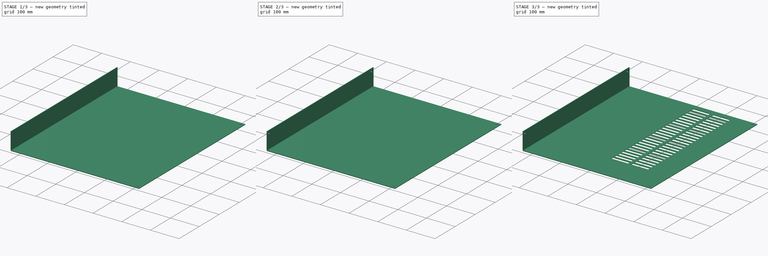
[diagram: build sequence overview — one tinted view per stage of 3, left to right]
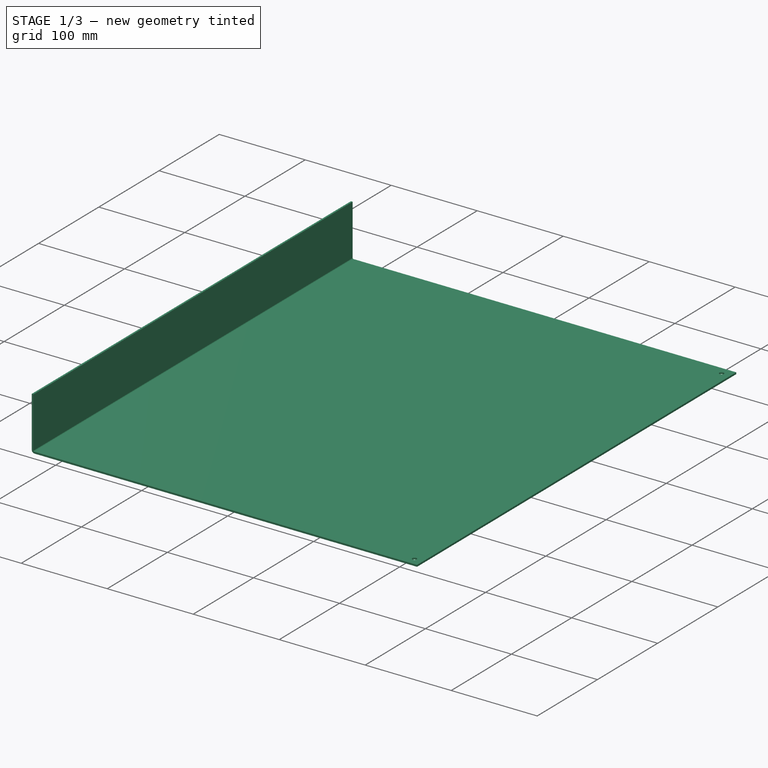
[diagram: stage 1 of 3 — iso view after this stage's code; geometry added in this stage tinted green]
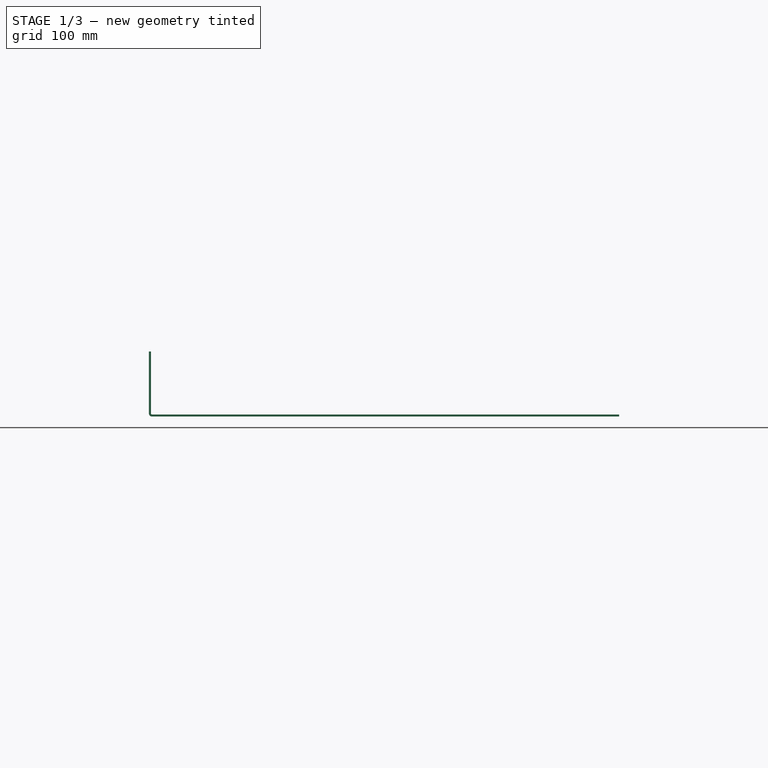
[diagram: stage 1 of 3 — front view after this stage's code; geometry added in this stage tinted green]
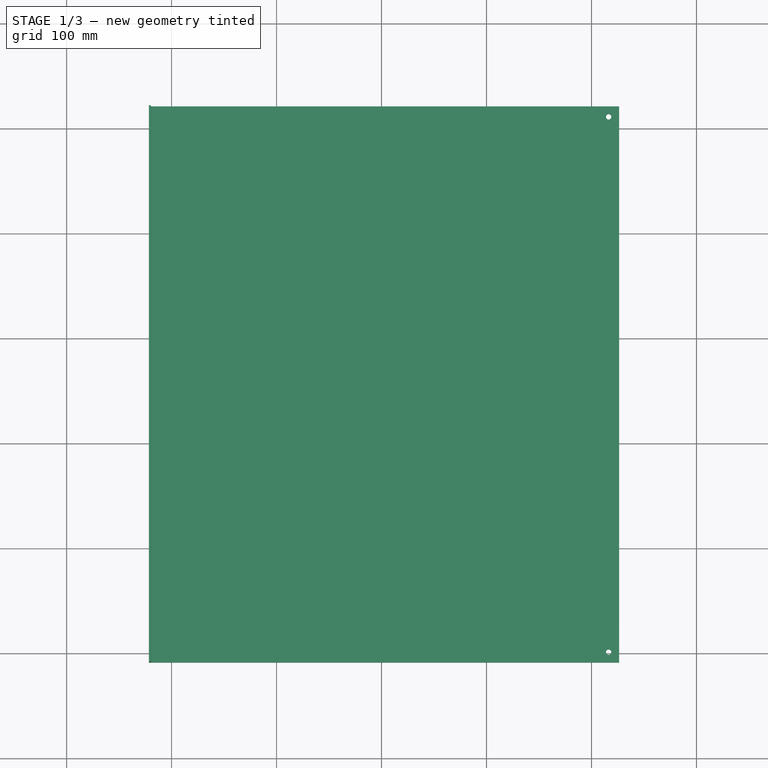
[diagram: stage 1 of 3 — top view after this stage's code; geometry added in this stage tinted green]
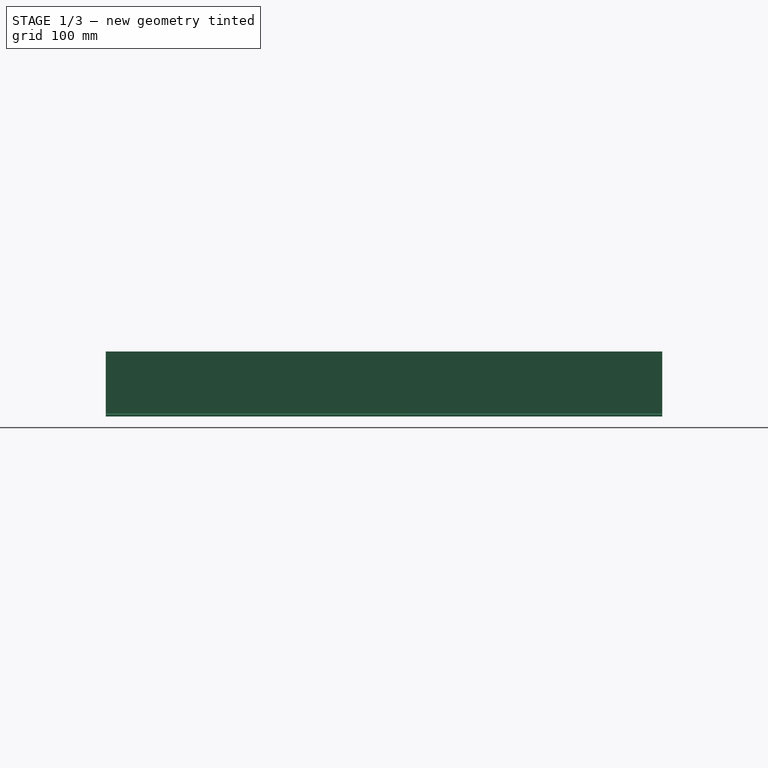
[diagram: stage 1 of 3 — right view after this stage's code; geometry added in this stage tinted green]
FCSTD DOCUMENT  (FreeCAD 0.16R6698 (Git))
Label: Switch_Back_Side_Plate
License: All rights reserved
LicenseURL: http://en.wikipedia.org/wiki/All_rights_reserved
objects: Sketcher::SketchObject×3, PartDesign::Pocket×2, PartDesign::Pad×1, Part::FeaturePython×1, PartDesign::LinearPattern×1
note: 11 computed .brp shape members not serialized (recipe doc carries the construction recipe); baked Part::Feature solids carry a one-line shape summary decoded from their .brp

FEATURE [Sketcher::SketchObject] Sketch
  sketch-geometry (6):
    g0: LineSegment StartX=-318.648 StartY=321.303 StartZ=0 EndX=126.352 EndY=321.303 EndZ=0
    g1: LineSegment StartX=126.352 StartY=321.303 StartZ=0 EndX=126.352 EndY=-208.697 EndZ=0
    g2: LineSegment StartX=126.352 StartY=-208.697 StartZ=0 EndX=-318.648 EndY=-208.697 EndZ=0
    g3: LineSegment StartX=-318.648 StartY=-208.697 StartZ=0 EndX=-318.648 EndY=321.303 EndZ=0
    g4: Circle CenterX=116.352 CenterY=311.303 CenterZ=0 NormalX=0 NormalY=0 NormalZ=1 Radius=2.5
    g5: Circle CenterX=116.352 CenterY=-198.697 CenterZ=0 NormalX=0 NormalY=0 NormalZ=1 Radius=2.5
  constraints (16):
    c: Coincident(g0,g1)
    c: Coincident(g1,g2)
    c: Coincident(g2,g3)
    c: Coincident(g3,g0)
    c: Horizontal(g0)
    c: Horizontal(g2)
    c: Vertical(g1)
    c: Vertical(g3)
    c: DistanceX(g0,g0) = 445
    c: DistanceY(g1,g1) = 530
    c: Radius(g5) = 2.5
    c: Equal(g5,g4)
    c: DistanceX(g4,g0) = 10
    c: DistanceY(g4,g0) = 10
    c: DistanceY(g1,g5) = 10
    c: DistanceX(g5,g1) = 10
FEATURE [PartDesign::Pad] Pad
  Length = 2
  Length2 = 100
  Sketch = -> Sketch
  Type = 0
FEATURE [Part::FeaturePython] Bend  # WARN: FeaturePython — macro-defined, semantics opaque (R4)
  angle = 90
  baseObject = -> Pad [Face4]
  gap1 = 0
  gap2 = 0
  invert = false
  length = 59
  radius = 1
  reliefd = 1
  reliefw = 0.5
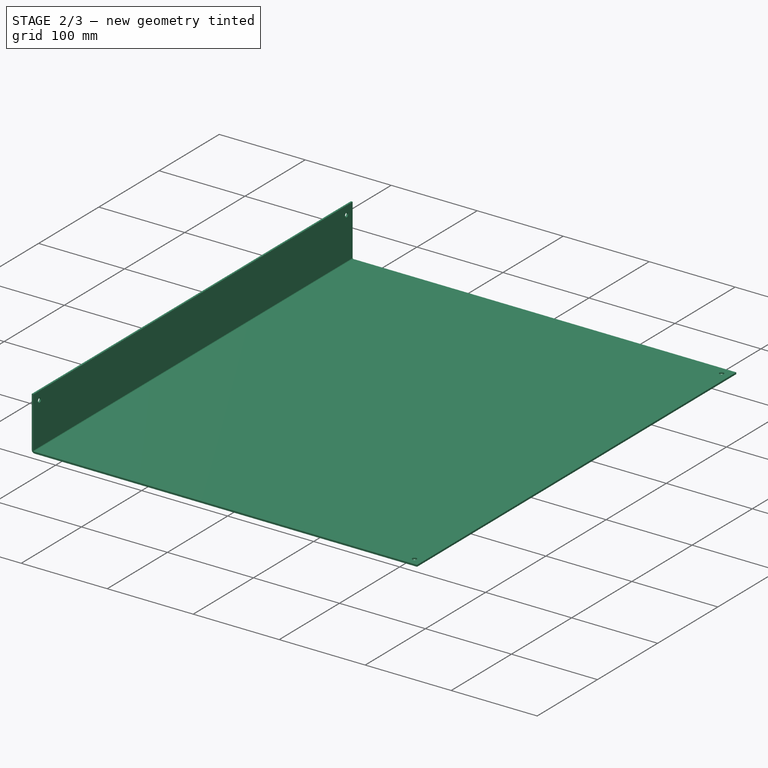
[diagram: stage 2 of 3 — iso view after this stage's code; geometry added in this stage tinted green]
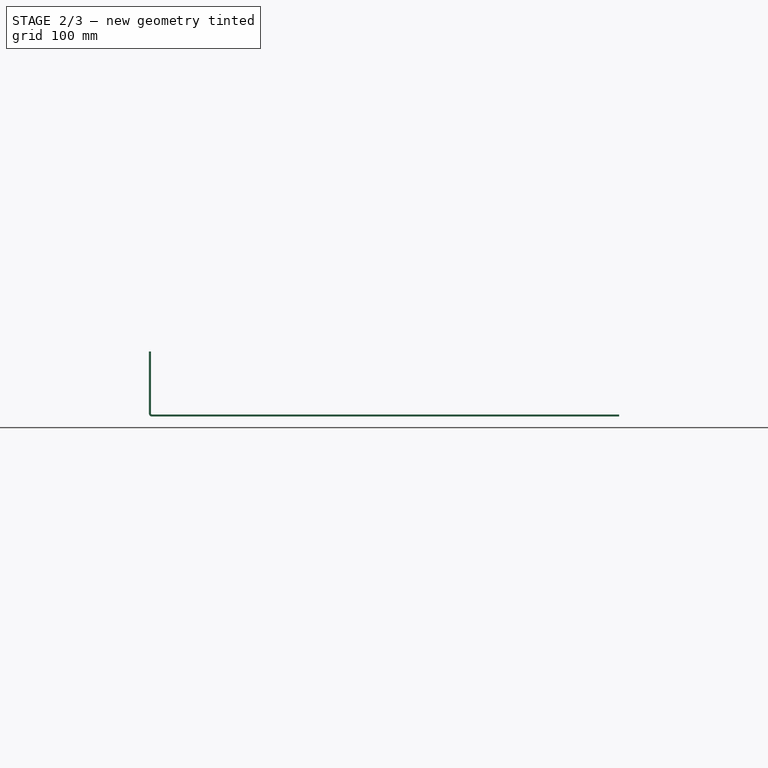
[diagram: stage 2 of 3 — front view after this stage's code; geometry added in this stage tinted green]
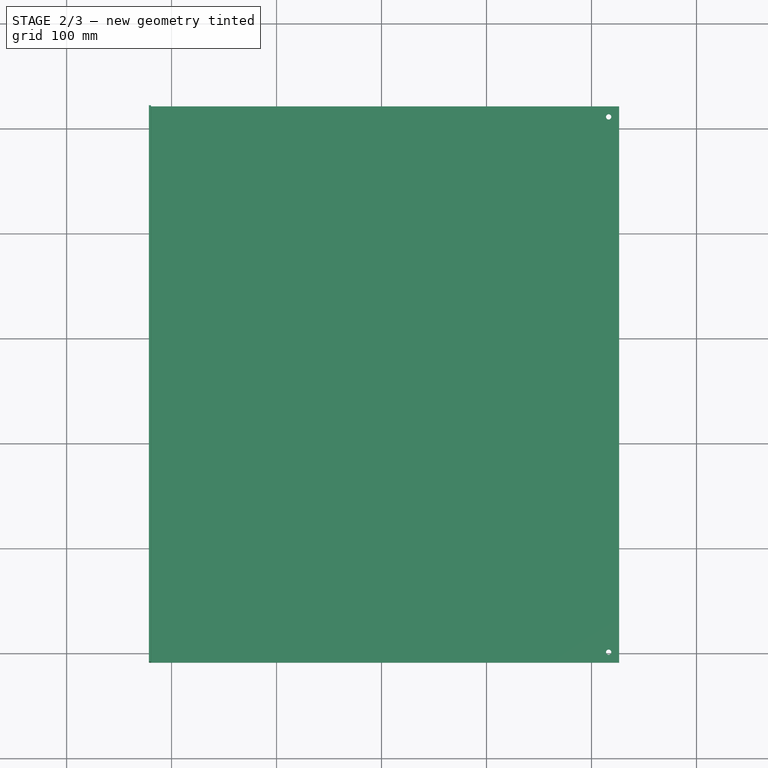
[diagram: stage 2 of 3 — top view after this stage's code; geometry added in this stage tinted green]
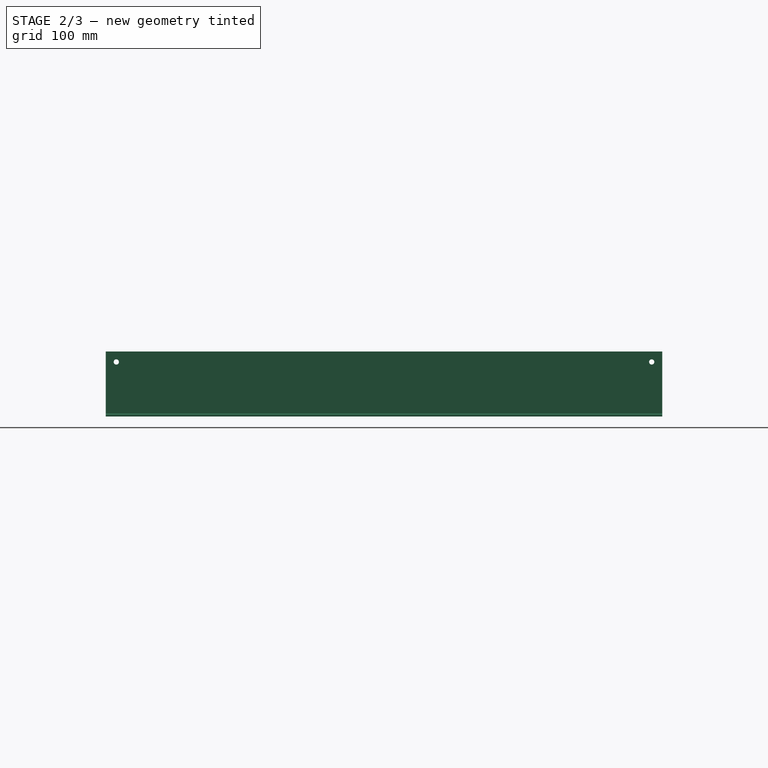
[diagram: stage 2 of 3 — right view after this stage's code; geometry added in this stage tinted green]
FEATURE [Sketcher::SketchObject] Sketch001
  ExternalGeometry = -> [Bend]
  Placement = pos=(-319.648,0,0) rot=(0.57735,0.57735,0.57735;2.0944rad)
  Support = -> Bend [Face5]
  sketch-geometry (2):
    g0: Circle CenterX=-198.697 CenterY=52 CenterZ=0 NormalX=0 NormalY=0 NormalZ=1 Radius=2.5
    g1: Circle CenterX=311.303 CenterY=52 CenterZ=0 NormalX=0 NormalY=0 NormalZ=1 Radius=2.5
  constraints (6):
    c: DistanceX(g1,g-3) = 10
    c: DistanceY(g1,g-3) = 10
    c: DistanceX(g-3,g0) = 10
    c: DistanceY(g0,g-3) = 10
    c: Radius(g0) = 2.5
    c: Equal(g0,g1)
FEATURE [PartDesign::Pocket] Pocket
  Length = 5
  Sketch = -> Sketch001
  Type = 0
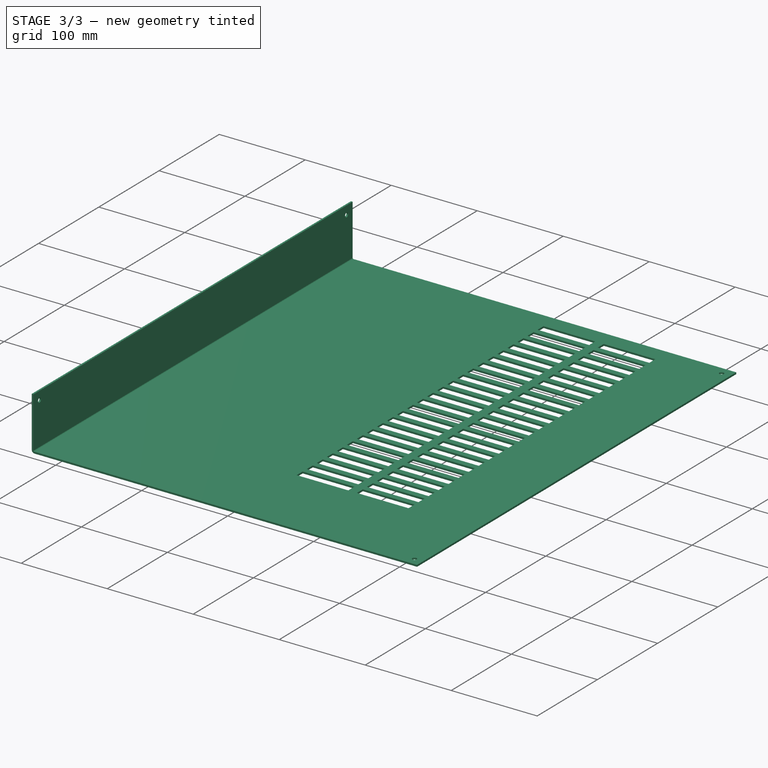
[diagram: stage 3 of 3 — iso view after this stage's code; geometry added in this stage tinted green]
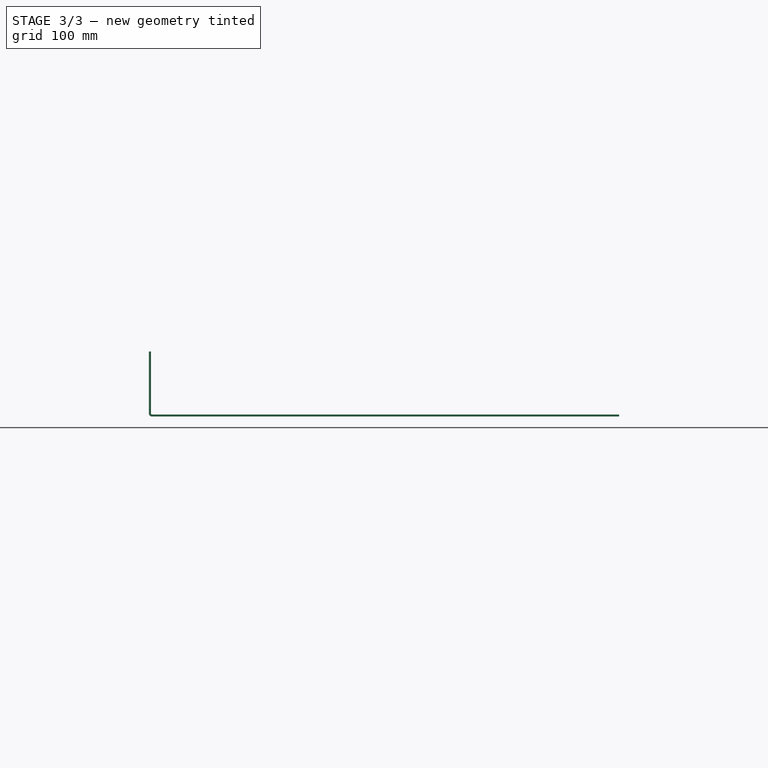
[diagram: stage 3 of 3 — front view after this stage's code; geometry added in this stage tinted green]
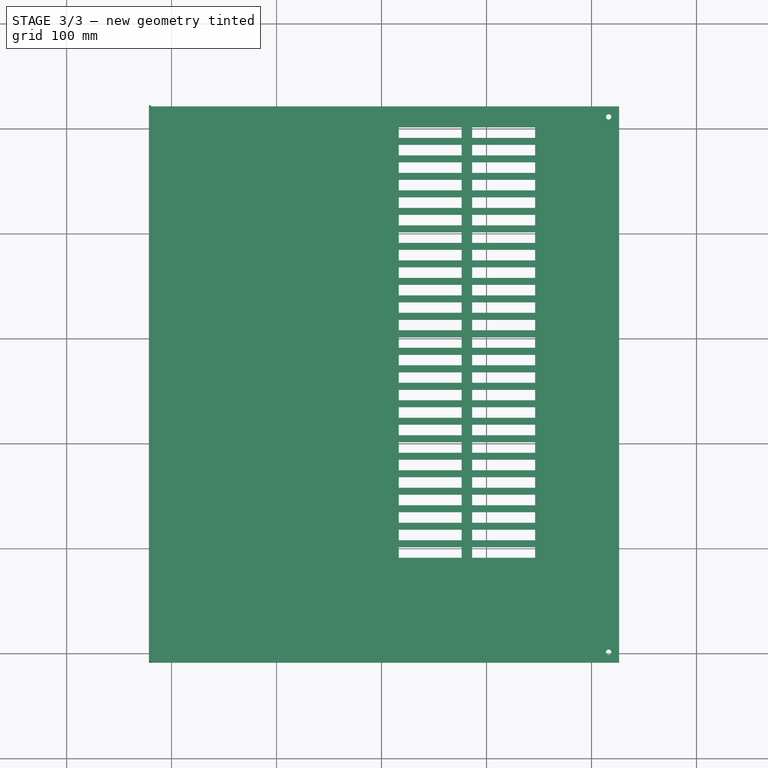
[diagram: stage 3 of 3 — top view after this stage's code; geometry added in this stage tinted green]
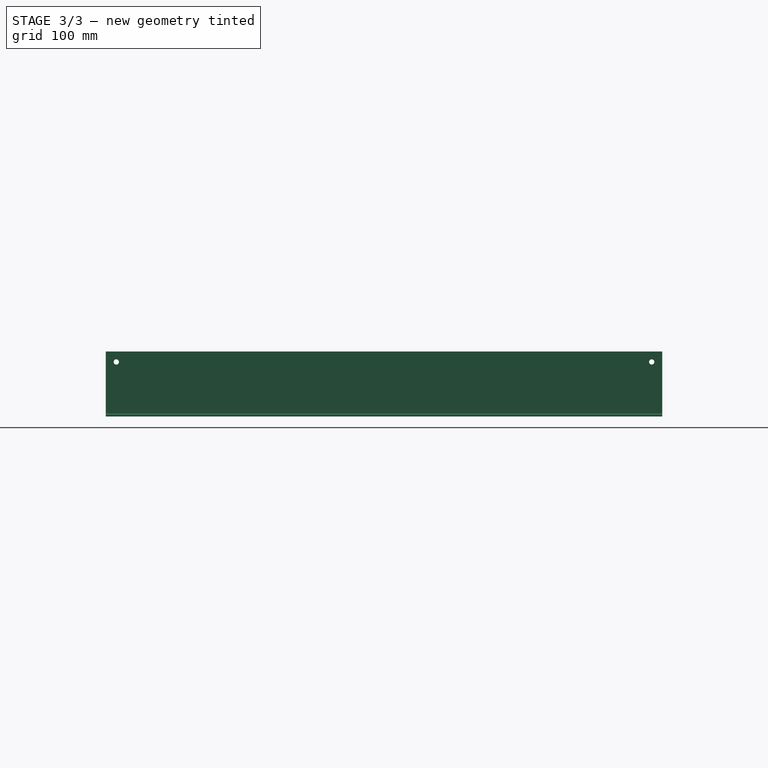
[diagram: stage 3 of 3 — right view after this stage's code; geometry added in this stage tinted green]
FEATURE [Sketcher::SketchObject] Sketch002
  ExternalGeometry = -> [Pocket]
  Placement = pos=(0,0,2) rot=(0,0,1;0rad)
  Support = -> Pocket [Face15]
  sketch-geometry (8):
    g0: LineSegment StartX=-83.6485 StartY=301.303 StartZ=0 EndX=-23.6485 EndY=301.303 EndZ=0
    g1: LineSegment StartX=46.3515 StartY=301.303 StartZ=0 EndX=46.3515 EndY=291.303 EndZ=0
    g2: LineSegment StartX=46.3515 StartY=291.303 StartZ=0 EndX=-13.6485 EndY=291.303 EndZ=0
    g3: LineSegment StartX=-83.6485 StartY=291.303 StartZ=0 EndX=-83.6485 EndY=301.303 EndZ=0
    g4: LineSegment StartX=-23.6485 StartY=301.303 StartZ=0 EndX=-23.6485 EndY=291.303 EndZ=0
    g5: LineSegment StartX=-13.6485 StartY=301.303 StartZ=0 EndX=-13.6485 EndY=291.303 EndZ=0
    g6: LineSegment StartX=-13.6485 StartY=301.303 StartZ=0 EndX=46.3515 EndY=301.303 EndZ=0
    g7: LineSegment StartX=-23.6485 StartY=291.303 StartZ=0 EndX=-83.6485 EndY=291.303 EndZ=0
  constraints (22):
    c: Coincident(g6,g1)
    c: Coincident(g1,g2)
    c: Coincident(g7,g3)
    c: Coincident(g3,g0)
    c: Horizontal(g0)
    c: Horizontal(g2)
    c: Vertical(g1)
    c: Vertical(g3)
    c: DistanceY(g3,g3) = 10
    c: DistanceX(g0,g6) = 130
    c: DistanceX(g6,g-3) = 80
    c: DistanceY(g6,g-3) = 20
    c: Vertical(g4)
    c: Vertical(g5)
    c: Coincident(g0,g4)
    c: Coincident(g6,g5)
    c: Tangent(g0,g6)
    c: Coincident(g2,g5)
    c: Coincident(g7,g4)
    c: Tangent(g2,g7)
    c: DistanceX(g0,g5) = 10
    c: DistanceX(g0,g0) = 60
FEATURE [PartDesign::Pocket] Pocket001
  Length = 5
  Sketch = -> Sketch002
  Type = 0
FEATURE [PartDesign::LinearPattern] LinearPattern
  Direction = -> Sketch002 [V_Axis]
  Length = 400
  Occurrences = 25
  Originals = -> [Pocket001]
  Reversed = true
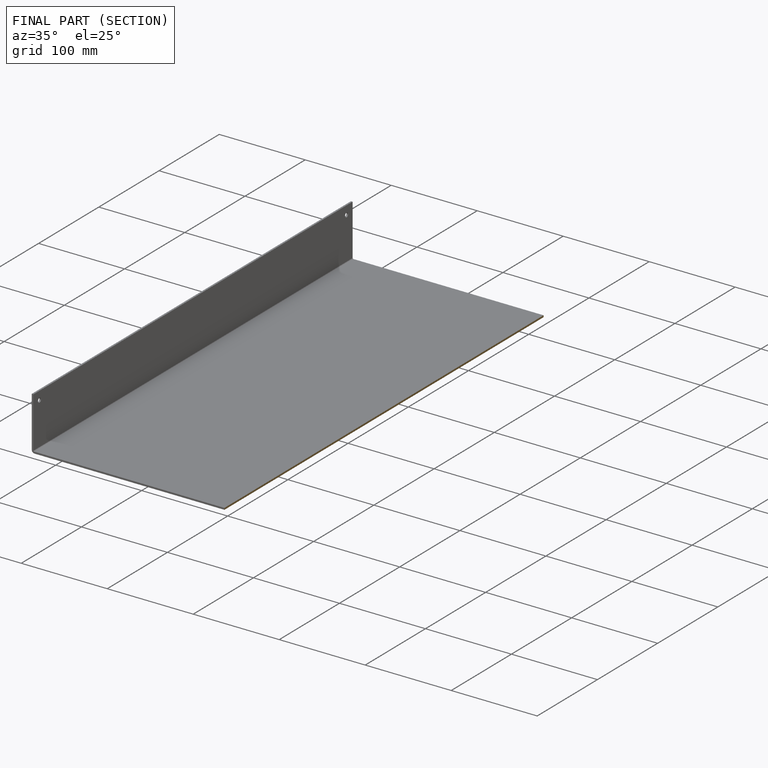
[diagram: finished part — half-section view (interior)]
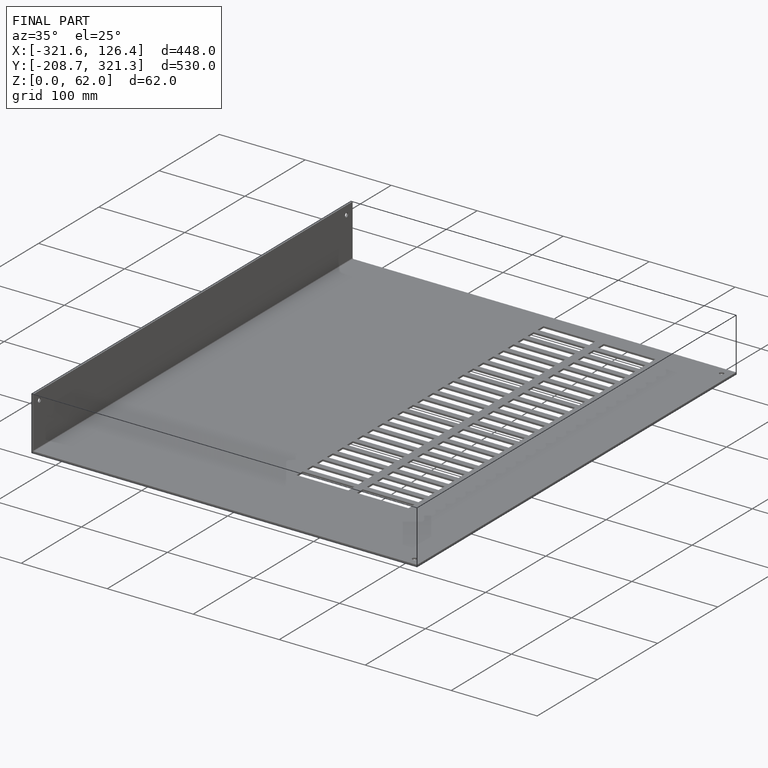
[diagram: finished part — iso view with bounding-box wireframe]
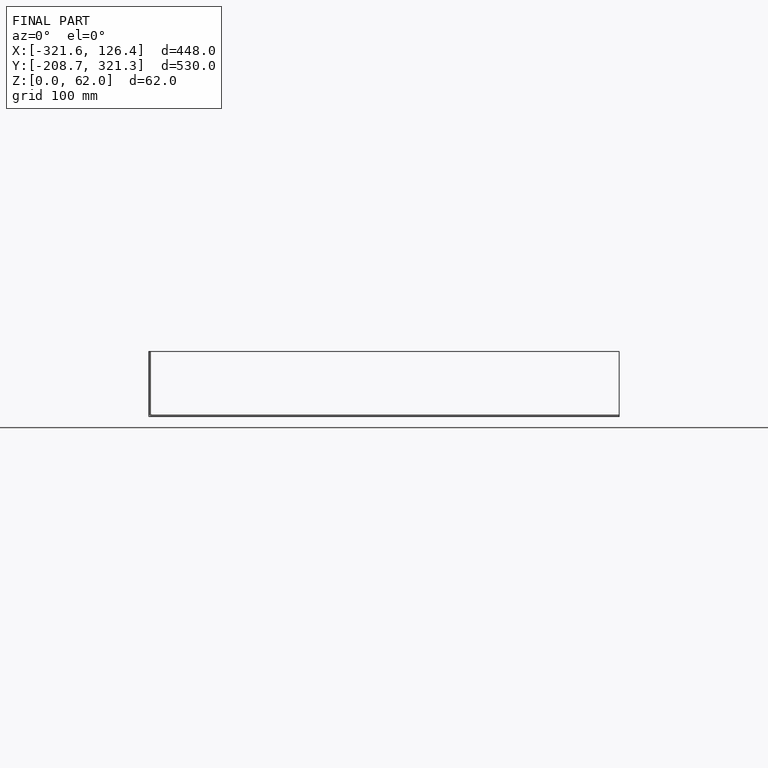
[diagram: finished part — front view with bounding-box wireframe]
